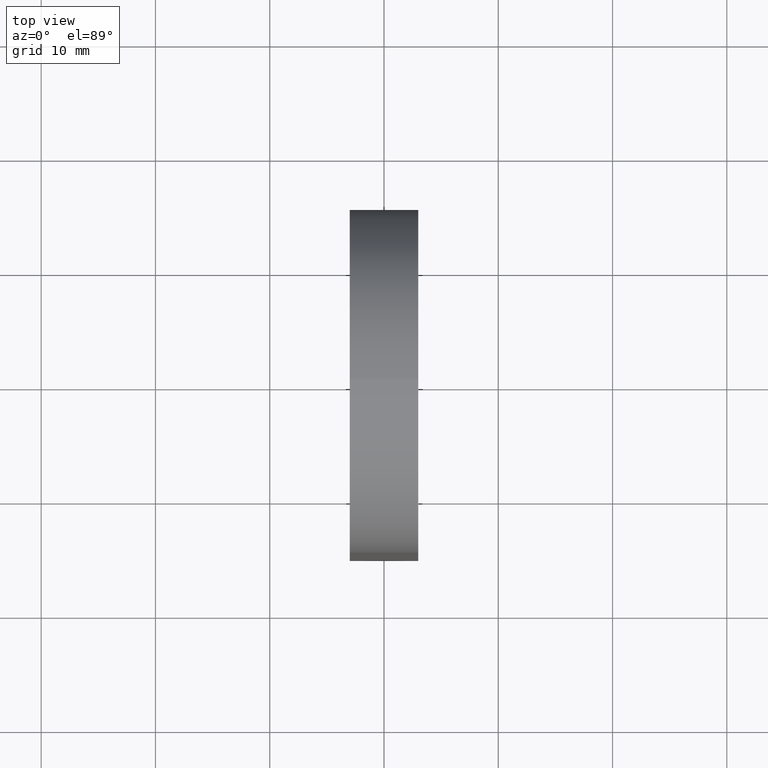
[diagram: clean part render]
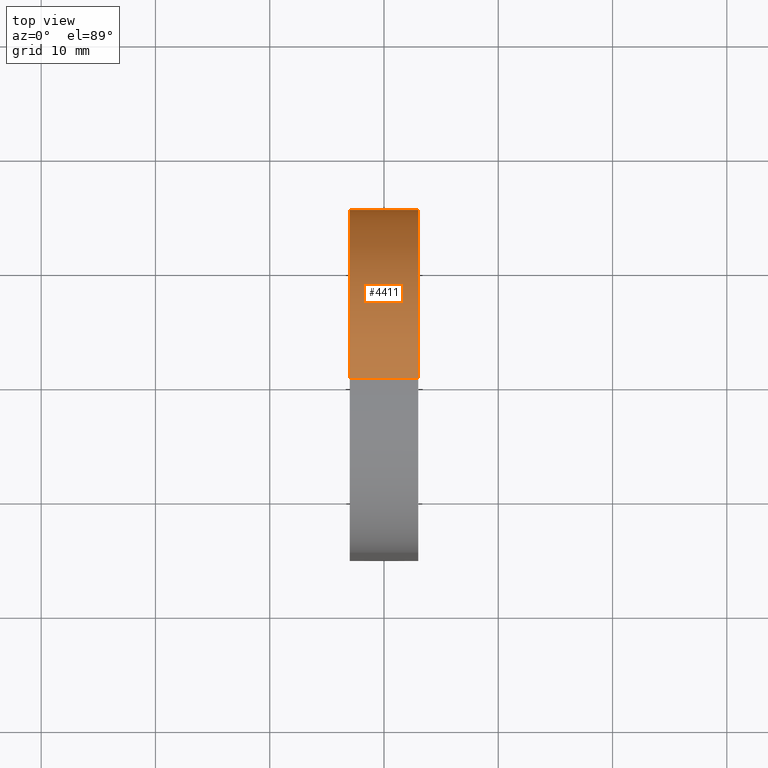
[diagram: same view with one face highlighted and labeled with its STEP entity id]
A machine part, top view. The second image highlights one B-rep face of the part: STEP entity #4411.
In plain terms, the highlighted cylindrical surface (partial cylindrical patch) has radius 15 mm, axis along (-1, -0, -0).
Its self-contained STEP definition (entity closure, byte-faithful):
#392 = EDGE_CURVE ( 'NONE', #1538, #10160, #9845, .T. ) ;
#748 = EDGE_LOOP ( 'NONE', ( #8929, #9963, #13062, #5580 ) ) ;
#782 = CIRCLE ( 'NONE', #3203, 15.00000000000000000 ) ;
#1207 = DIRECTION ( 'NONE',  ( 0.0000000000000000000, 0.0000000000000000000, 1.000000000000000000 ) ) ;
#1538 = VERTEX_POINT ( 'NONE', #5665 ) ;
#1607 = CYLINDRICAL_SURFACE ( 'NONE', #2699, 15.00000000000000000 ) ;
#1952 = EDGE_CURVE ( 'NONE', #1538, #13091, #8222, .T. ) ;
#2053 = CARTESIAN_POINT ( 'NONE',  ( 3.000000000000000000, 0.0000000000000000000, 34.99999999999999300 ) ) ;
#2341 = DIRECTION ( 'NONE',  ( -1.000000000000000000, -0.0000000000000000000, -0.0000000000000000000 ) ) ;
#2441 = AXIS2_PLACEMENT_3D ( 'NONE', #3733, #11762, #2569 ) ;
#2569 = DIRECTION ( 'NONE',  ( 0.0000000000000000000, 0.0000000000000000000, 1.000000000000000000 ) ) ;
#2640 = EDGE_CURVE ( 'NONE', #13091, #11057, #782, .T. ) ;
#2699 = AXIS2_PLACEMENT_3D ( 'NONE', #2053, #8138, #1207 ) ;
#3203 = AXIS2_PLACEMENT_3D ( 'NONE', #12297, #11167, #9275 ) ;
#3659 = FACE_OUTER_BOUND ( 'NONE', #748, .T. ) ;
#3733 = CARTESIAN_POINT ( 'NONE',  ( 3.000000000000000000, 0.0000000000000000000, 34.99999999999999300 ) ) ;
#3826 = CARTESIAN_POINT ( 'NONE',  ( -3.000000000000000000, 0.0000000000000000000, 49.99999999999999300 ) ) ;
#4411 = ADVANCED_FACE ( 'NONE', ( #3659 ), #1607, .T. ) ;
#5476 = VECTOR ( 'NONE', #8491, 1000.000000000000000 ) ;
#5554 = VECTOR ( 'NONE', #2341, 1000.000000000000000 ) ;
#5580 = ORIENTED_EDGE ( 'NONE', *, *, #2640, .F. ) ;
#5665 = CARTESIAN_POINT ( 'NONE',  ( 3.000000000000000000, 0.0000000000000000000, 49.99999999999999300 ) ) ;
#6472 = CARTESIAN_POINT ( 'NONE',  ( 3.000000000000000000, 0.0000000000000000000, 49.99999999999999300 ) ) ;
#7094 = CARTESIAN_POINT ( 'NONE',  ( -3.000000000000000000, 14.99999999999999800, 34.99999999999999300 ) ) ;
#8138 = DIRECTION ( 'NONE',  ( -1.000000000000000000, -0.0000000000000000000, -0.0000000000000000000 ) ) ;
#8222 = LINE ( 'NONE', #6472, #5554 ) ;
#8491 = DIRECTION ( 'NONE',  ( -1.000000000000000000, -0.0000000000000000000, -0.0000000000000000000 ) ) ;
#8787 = CARTESIAN_POINT ( 'NONE',  ( 3.000000000000000000, 14.99999999999999800, 34.99999999999999300 ) ) ;
#8929 = ORIENTED_EDGE ( 'NONE', *, *, #1952, .F. ) ;
#9275 = DIRECTION ( 'NONE',  ( 0.0000000000000000000, 0.0000000000000000000, 1.000000000000000000 ) ) ;
#9845 = CIRCLE ( 'NONE', #2441, 15.00000000000000000 ) ;
#9963 = ORIENTED_EDGE ( 'NONE', *, *, #392, .T. ) ;
#10160 = VERTEX_POINT ( 'NONE', #8787 ) ;
#10833 = LINE ( 'NONE', #12516, #5476 ) ;
#10874 = EDGE_CURVE ( 'NONE', #10160, #11057, #10833, .T. ) ;
#11057 = VERTEX_POINT ( 'NONE', #7094 ) ;
#11167 = DIRECTION ( 'NONE',  ( -1.000000000000000000, -0.0000000000000000000, 0.0000000000000000000 ) ) ;
#11762 = DIRECTION ( 'NONE',  ( -1.000000000000000000, -0.0000000000000000000, 0.0000000000000000000 ) ) ;
#12297 = CARTESIAN_POINT ( 'NONE',  ( -3.000000000000000000, 0.0000000000000000000, 34.99999999999999300 ) ) ;
#12516 = CARTESIAN_POINT ( 'NONE',  ( 3.000000000000000000, 14.99999999999999800, 34.99999999999999300 ) ) ;
#13062 = ORIENTED_EDGE ( 'NONE', *, *, #10874, .T. ) ;
#13091 = VERTEX_POINT ( 'NONE', #3826 ) ;